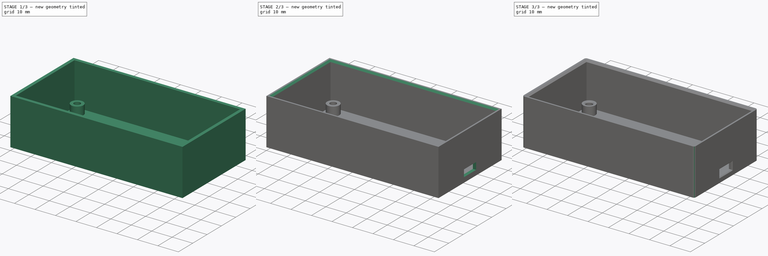
[diagram: build sequence overview — one tinted view per stage of 3, left to right]
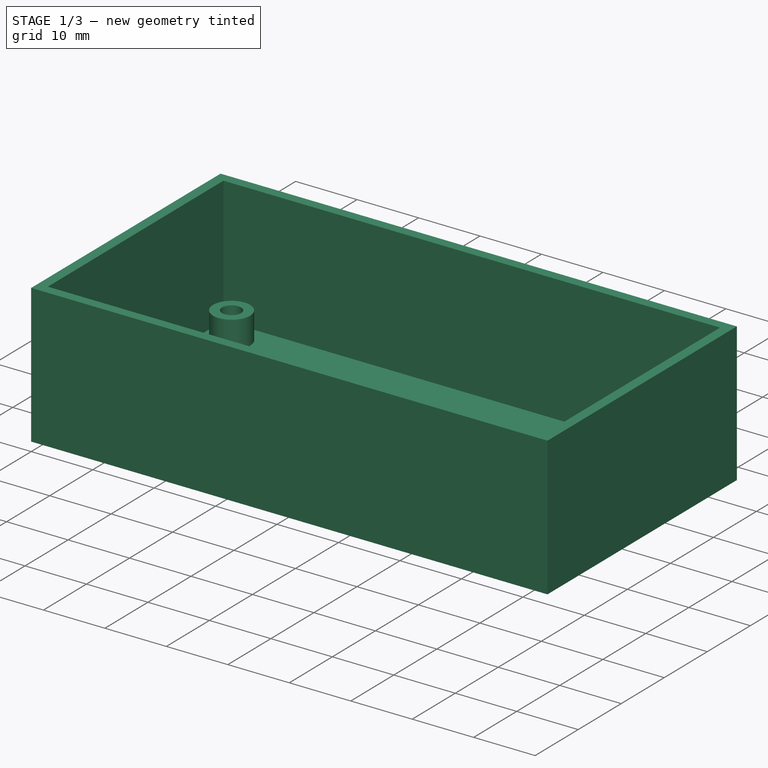
[diagram: stage 1 of 3 — iso view after this stage's code; geometry added in this stage tinted green]
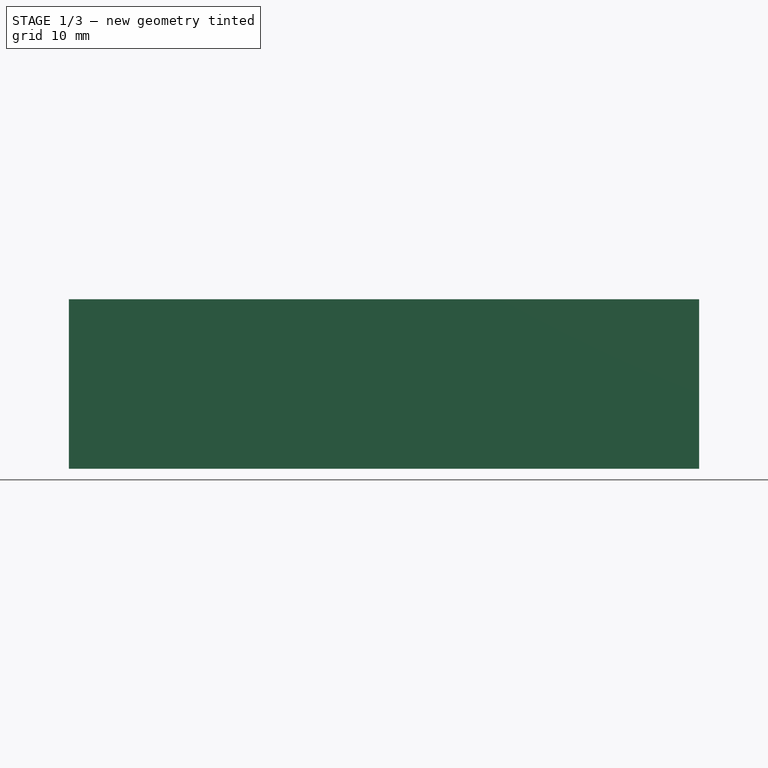
[diagram: stage 1 of 3 — front view after this stage's code; geometry added in this stage tinted green]
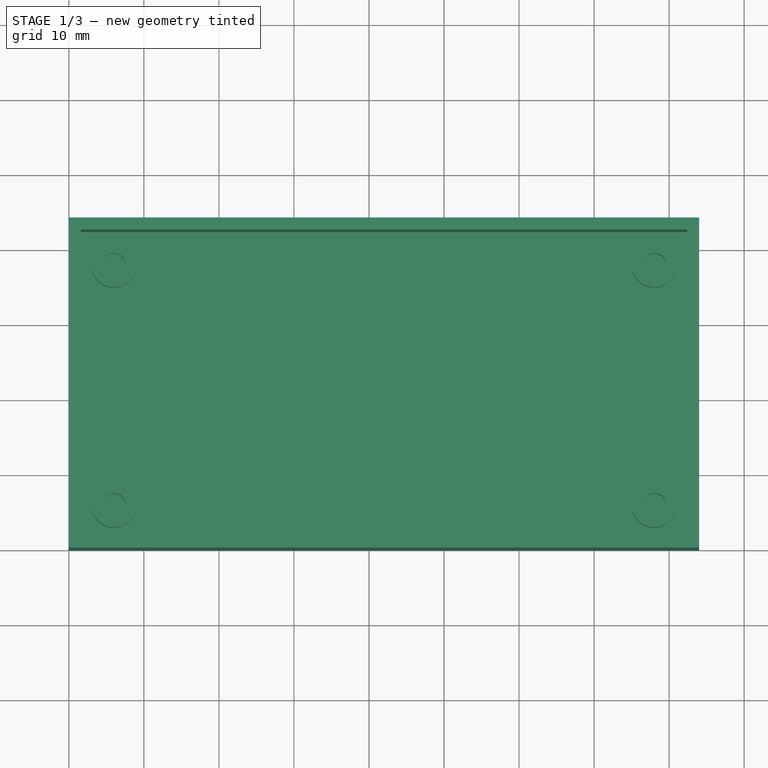
[diagram: stage 1 of 3 — top view after this stage's code; geometry added in this stage tinted green]
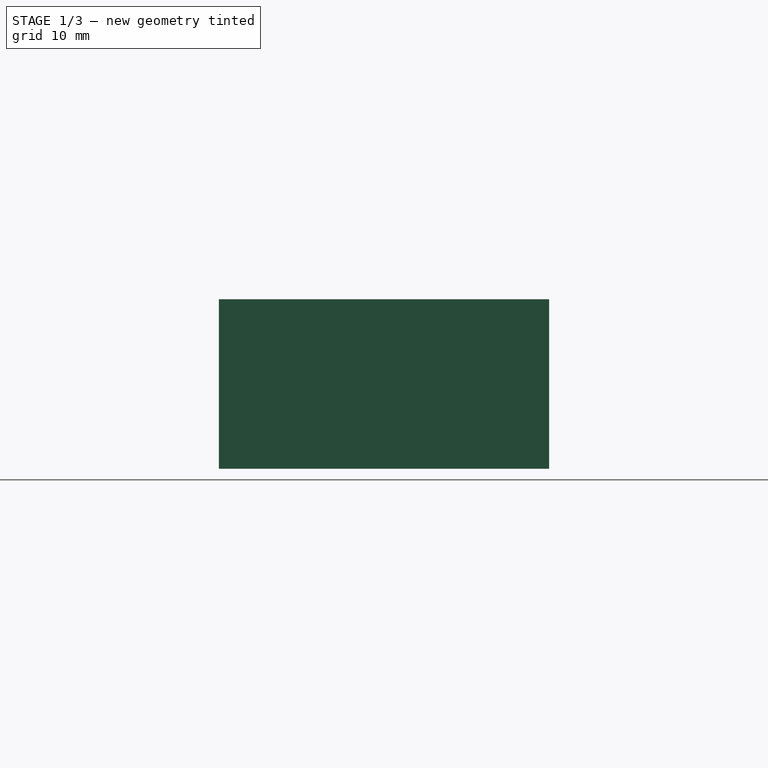
[diagram: stage 1 of 3 — right view after this stage's code; geometry added in this stage tinted green]
FCSTD DOCUMENT  (FreeCAD 1.0R39109 (Git))
Label: Bottom
License: All rights reserved
LicenseURL: https://en.wikipedia.org/wiki/All_rights_reserved
objects: Sketcher::SketchObject×5, PartDesign::Pad×3, PartDesign::Chamfer×3, PartDesign::Pocket×1, PartDesign::Fillet×1, PartDesign::Body×1
note: 35 computed .brp shape members not serialized (recipe doc carries the construction recipe); baked Part::Feature solids carry a one-line shape summary decoded from their .brp

FEATURE [Sketcher::SketchObject] Sketch
  ArcFitTolerance = 1e-06
  AttachmentSupport = -> [XY_Plane]
  FullyConstrained = true
  MakeInternals = false
  MapMode = 5
  sketch-geometry (19):
    g0: LineSegment StartX=2 StartY=2 StartZ=0 EndX=82 EndY=2 EndZ=0
    g1: LineSegment StartX=82 StartY=2 StartZ=0 EndX=82 EndY=42 EndZ=0
    g2: LineSegment StartX=82 StartY=42 StartZ=0 EndX=2 EndY=42 EndZ=0
    g3: LineSegment StartX=2 StartY=42 StartZ=0 EndX=2 EndY=2 EndZ=0
    g4: LineSegment StartX=6 StartY=38 StartZ=0 EndX=6 EndY=6 EndZ=0
    g5: LineSegment StartX=6 StartY=6 StartZ=0 EndX=78 EndY=6 EndZ=0
    g6: LineSegment StartX=78 StartY=6 StartZ=0 EndX=78 EndY=38 EndZ=0
    g7: LineSegment StartX=78 StartY=38 StartZ=0 EndX=6 EndY=38 EndZ=0
    g8: LineSegment [constr] StartX=2 StartY=42 StartZ=0 EndX=6 EndY=38 EndZ=0
    g9: LineSegment [constr] StartX=78 StartY=38 StartZ=0 EndX=82 EndY=42 EndZ=0
    g10: LineSegment [constr] StartX=78 StartY=6 StartZ=0 EndX=82 EndY=2 EndZ=0
    g11: LineSegment StartX=0 StartY=0 StartZ=0 EndX=84 EndY=0 EndZ=0
    g12: LineSegment StartX=84 StartY=0 StartZ=0 EndX=84 EndY=44 EndZ=0
    g13: LineSegment StartX=84 StartY=44 StartZ=0 EndX=0 EndY=44 EndZ=0
    g14: LineSegment StartX=0 StartY=44 StartZ=0 EndX=0 EndY=0 EndZ=0
    g15: LineSegment [constr] StartX=2 StartY=42 StartZ=0 EndX=0 EndY=44 EndZ=0
    g16: LineSegment [constr] StartX=82 StartY=42 StartZ=0 EndX=84 EndY=44 EndZ=0
    g17: LineSegment [constr] StartX=82 StartY=2 StartZ=0 EndX=84 EndY=0 EndZ=0
    g18: LineSegment [constr] StartX=2 StartY=2 StartZ=0 EndX=0 EndY=0 EndZ=0
  constraints (49):
    c: Coincident(g0,g1)
    c: Coincident(g1,g2)
    c: Coincident(g2,g3)
    c: Coincident(g3,g0)
    c: Horizontal(g0)
    c: Horizontal(g2)
    c: Vertical(g1)
    c: Vertical(g3)
    c: DistanceX(g2,g2) = 80
    c: DistanceY(g3,g3) = 40
    c: Coincident(g4,g5)
    c: Coincident(g5,g6)
    c: Coincident(g6,g7)
    c: Coincident(g7,g4)
    c: Vertical(g4)
    c: Vertical(g6)
    c: Horizontal(g5)
    c: Horizontal(g7)
    c: DistanceX(g7,g7) = 72
    c: DistanceY(g4,g4) = 32
    c: Coincident(g8,g2)
    c: Coincident(g8,g4)
    c: Coincident(g9,g6)
    c: Coincident(g9,g1)
    c: Coincident(g10,g5)
    c: Coincident(g10,g0)
    c: Equal(g10,g9)
    c: Equal(g9,g8)
    c: Coincident(g11,g12)
    c: Coincident(g12,g13)
    c: Coincident(g13,g14)
    c: Coincident(g14,g11)
    c: Horizontal(g11)
    c: Horizontal(g13)
    c: Vertical(g12)
    c: Vertical(g14)
    c: Coincident(g11,g-1)
    c: Coincident(g15,g2)
    c: Coincident(g15,g13)
    c: Coincident(g16,g1)
    c: Coincident(g16,g12)
    c: Coincident(g17,g0)
    c: Coincident(g17,g11)
    c: Coincident(g18,g0)
    c: Coincident(g18,g11)
    c: Equal(g18,g15)
    c: Equal(g15,g16)
    c: DistanceX(g18,g18) = 2
    c: DistanceY(g18,g18) = 2
FEATURE [Sketcher::SketchObject] Sketch001
  ArcFitTolerance = 1e-06
  AttachmentSupport = -> [XY_Plane]
  FullyConstrained = true
  MakeInternals = false
  MapMode = 5
  expr: Constraints[18] = Sketch.Constraints[18]
  expr: Constraints[19] = Sketch.Constraints[19]
  expr: Constraints[47] = Sketch.Constraints[47]
  expr: Constraints[48] = Sketch.Constraints[48]
  expr: Constraints[8] = Sketch.Constraints[8]
  expr: Constraints[9] = Sketch.Constraints[9]
  sketch-geometry (23):
    g0: LineSegment [constr] StartX=2 StartY=2 StartZ=0 EndX=82 EndY=2 EndZ=0
    g1: LineSegment [constr] StartX=82 StartY=2 StartZ=0 EndX=82 EndY=42 EndZ=0
    g2: LineSegment [constr] StartX=82 StartY=42 StartZ=0 EndX=2 EndY=42 EndZ=0
    g3: LineSegment [constr] StartX=2 StartY=42 StartZ=0 EndX=2 EndY=2 EndZ=0
    g4: LineSegment [constr] StartX=6 StartY=38 StartZ=0 EndX=6 EndY=6 EndZ=0
    g5: LineSegment [constr] StartX=6 StartY=6 StartZ=0 EndX=78 EndY=6 EndZ=0
    g6: LineSegment [constr] StartX=78 StartY=6 StartZ=0 EndX=78 EndY=38 EndZ=0
    g7: LineSegment [constr] StartX=78 StartY=38 StartZ=0 EndX=6 EndY=38 EndZ=0
    g8: LineSegment [constr] StartX=2 StartY=42 StartZ=0 EndX=6 EndY=38 EndZ=0
    g9: LineSegment [constr] StartX=78 StartY=38 StartZ=0 EndX=82 EndY=42 EndZ=0
    g10: LineSegment [constr] StartX=78 StartY=6 StartZ=0 EndX=82 EndY=2 EndZ=0
    g11: LineSegment StartX=0 StartY=0 StartZ=0 EndX=84 EndY=0 EndZ=0
    g12: LineSegment StartX=84 StartY=0 StartZ=0 EndX=84 EndY=44 EndZ=0
    g13: LineSegment StartX=84 StartY=44 StartZ=0 EndX=0 EndY=44 EndZ=0
    g14: LineSegment StartX=0 StartY=44 StartZ=0 EndX=0 EndY=0 EndZ=0
    g15: LineSegment [constr] StartX=2 StartY=42 StartZ=0 EndX=0 EndY=44 EndZ=0
    g16: LineSegment [constr] StartX=82 StartY=42 StartZ=0 EndX=84 EndY=44 EndZ=0
    g17: LineSegment [constr] StartX=82 StartY=2 StartZ=0 EndX=84 EndY=0 EndZ=0
    g18: LineSegment [constr] StartX=2 StartY=2 StartZ=0 EndX=0 EndY=0 EndZ=0
    g19: LineSegment StartX=1.6 StartY=42.4 StartZ=0 EndX=1.6 EndY=1.6 EndZ=0
    g20: LineSegment StartX=1.6 StartY=1.6 StartZ=0 EndX=82.4 EndY=1.6 EndZ=0
    g21: LineSegment StartX=82.4 StartY=1.6 StartZ=0 EndX=82.4 EndY=42.4 EndZ=0
    g22: LineSegment StartX=82.4 StartY=42.4 StartZ=0 EndX=1.6 EndY=42.4 EndZ=0
  constraints (61):
    c: Coincident(g0,g1)
    c: Coincident(g1,g2)
    c: Coincident(g2,g3)
    c: Coincident(g3,g0)
    c: Horizontal(g0)
    c: Horizontal(g2)
    c: Vertical(g1)
    c: Vertical(g3)
    c: DistanceX(g2,g2) = 80
    c: DistanceY(g3,g3) = 40
    c: Coincident(g4,g5)
    c: Coincident(g5,g6)
    c: Coincident(g6,g7)
    c: Coincident(g7,g4)
    c: Vertical(g4)
    c: Vertical(g6)
    c: Horizontal(g5)
    c: Horizontal(g7)
    c: DistanceX(g7,g7) = 72
    c: DistanceY(g4,g4) = 32
    c: Coincident(g8,g2)
    c: Coincident(g8,g4)
    c: Coincident(g9,g6)
    c: Coincident(g9,g1)
    c: Coincident(g10,g5)
    c: Coincident(g10,g0)
    c: Equal(g10,g9)
    c: Equal(g9,g8)
    c: Coincident(g11,g12)
    c: Coincident(g12,g13)
    c: Coincident(g13,g14)
    c: Coincident(g14,g11)
    c: Horizontal(g11)
    c: Horizontal(g13)
    c: Vertical(g12)
    c: Vertical(g14)
    c: Coincident(g11,g-1)
    c: Coincident(g15,g2)
    c: Coincident(g15,g13)
    c: Coincident(g16,g1)
    c: Coincident(g16,g12)
    c: Coincident(g17,g0)
    c: Coincident(g17,g11)
    c: Coincident(g18,g0)
    c: Coincident(g18,g11)
    c: Equal(g18,g15)
    c: Equal(g15,g16)
    c: DistanceX(g18,g18) = 2
    c: DistanceY(g18,g18) = 2
    c: Coincident(g19,g20)
    c: Coincident(g20,g21)
    c: Coincident(g21,g22)
    c: Coincident(g22,g19)
    c: Vertical(g19)
    c: Vertical(g21)
    c: Horizontal(g20)
    c: Horizontal(g22)
    c: PointOnObject(g19,g15)
    c: PointOnObject(g20,g17)
    c: PointOnObject(g21,g16)
    c: DistanceX(g13,g19) = 1.6
FEATURE [PartDesign::Pad] Pad
  Direction = (0,0,1)
  Length = 20.6
  Length2 = 10
  Profile = -> Sketch001
  ReferenceAxis = -> Sketch001 [N_Axis]
  Refine = true
  Suppressed = false
  Type = 0
  expr: Length = 4.4 + 16.2
FEATURE [Sketcher::SketchObject] Sketch002
  ArcFitTolerance = 1e-06
  AttachmentSupport = -> [Pad]
  ExternalGeometry = -> [Pad]
  FullyConstrained = true
  MakeInternals = false
  MapMode = 5
  Placement = pos=(0,0,0) rot=(1,0,0;3.14159rad)
  sketch-geometry (4):
    g0: LineSegment StartX=0 StartY=0 StartZ=0 EndX=0 EndY=-44 EndZ=0
    g1: LineSegment StartX=0 StartY=-44 StartZ=0 EndX=84 EndY=-44 EndZ=0
    g2: LineSegment StartX=84 StartY=-44 StartZ=0 EndX=84 EndY=0 EndZ=0
    g3: LineSegment StartX=84 StartY=0 StartZ=0 EndX=0 EndY=0 EndZ=0
  constraints (10):
    c: Coincident(g0,g1)
    c: Coincident(g1,g2)
    c: Coincident(g2,g3)
    c: Coincident(g3,g0)
    c: Vertical(g0)
    c: Vertical(g2)
    c: Horizontal(g1)
    c: Horizontal(g3)
    c: Coincident(g0,g-1)
    c: Coincident(g1,g-3)
FEATURE [PartDesign::Pad] Pad001
  BaseFeature = -> Pad
  Direction = (0,0,-1)
  Length = 2
  Length2 = 10
  Profile = -> Sketch002
  ReferenceAxis = -> Sketch002 [N_Axis]
  Refine = true
  Suppressed = false
  Type = 0
FEATURE [Sketcher::SketchObject] Sketch003
  ArcFitTolerance = 1e-06
  AttachmentSupport = -> [Pad001]
  ExternalGeometry = -> [Sketch]
  FullyConstrained = true
  MakeInternals = false
  MapMode = 5
  sketch-geometry (8):
    g0: Circle CenterX=6 CenterY=38 CenterZ=0 NormalX=0 NormalY=0 NormalZ=1 AngleXU=0 Radius=1.55
    g1: Circle CenterX=6 CenterY=38 CenterZ=0 NormalX=0 NormalY=0 NormalZ=1 AngleXU=0 Radius=3
    g2: Circle CenterX=78 CenterY=38 CenterZ=0 NormalX=0 NormalY=0 NormalZ=1 AngleXU=0 Radius=1.55
    g3: Circle CenterX=78 CenterY=38 CenterZ=0 NormalX=0 NormalY=0 NormalZ=1 AngleXU=0 Radius=3
    g4: Circle CenterX=78 CenterY=6 CenterZ=0 NormalX=0 NormalY=0 NormalZ=1 AngleXU=0 Radius=1.55
    g5: Circle CenterX=78 CenterY=6 CenterZ=0 NormalX=0 NormalY=0 NormalZ=1 AngleXU=0 Radius=3
    g6: Circle CenterX=6 CenterY=6 CenterZ=0 NormalX=0 NormalY=0 NormalZ=1 AngleXU=0 Radius=1.55
    g7: Circle CenterX=6 CenterY=6 CenterZ=0 NormalX=0 NormalY=0 NormalZ=1 AngleXU=0 Radius=3
  constraints (16):
    c: Coincident(g0,g-3)
    c: Coincident(g1,g0)
    c: Coincident(g2,g-4)
    c: Coincident(g3,g2)
    c: Coincident(g4,g-5)
    c: Coincident(g5,g4)
    c: Coincident(g6,g-6)
    c: Coincident(g7,g6)
    c: Diameter(g6) = 3.1
    c: Diameter(g7) = 6
    c: Equal(g6,g0)
    c: Equal(g0,g2)
    c: Equal(g2,g4)
    c: Equal(g5,g3)
    c: Equal(g3,g1)
    c: Equal(g1,g7)
FEATURE [PartDesign::Pad] Pad002
  BaseFeature = -> Pad001
  Direction = (0,0,1)
  Length = 4.4
  Length2 = 10
  Profile = -> Sketch003
  ReferenceAxis = -> Sketch003 [N_Axis]
  Refine = true
  Suppressed = false
  Type = 0
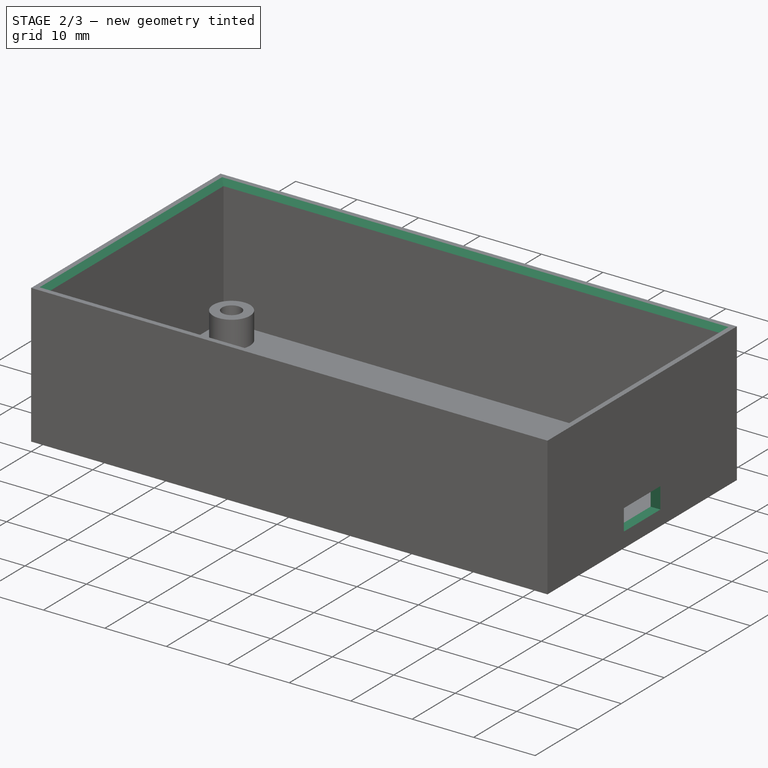
[diagram: stage 2 of 3 — iso view after this stage's code; geometry added in this stage tinted green]
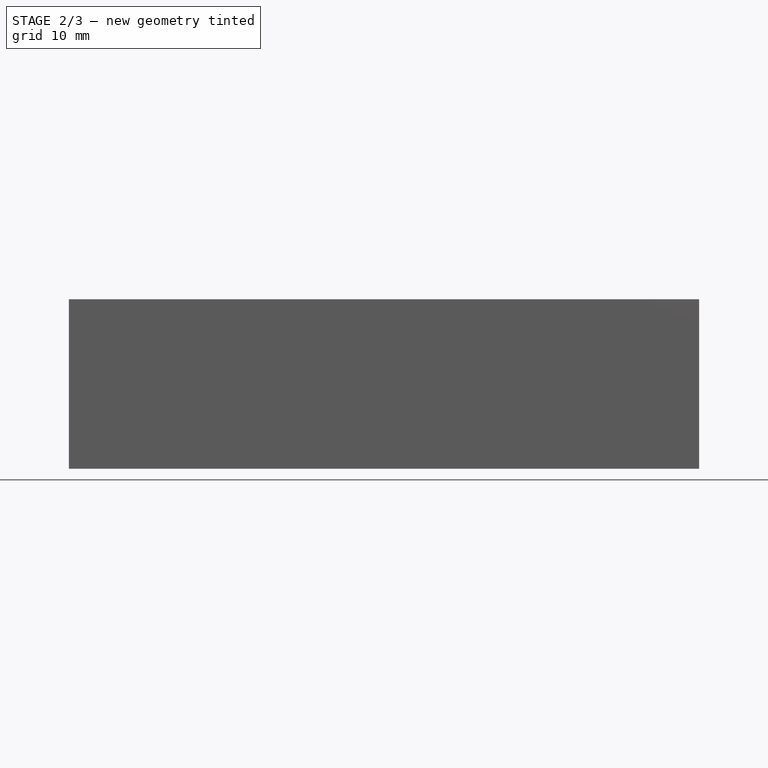
[diagram: stage 2 of 3 — front view after this stage's code; geometry added in this stage tinted green]
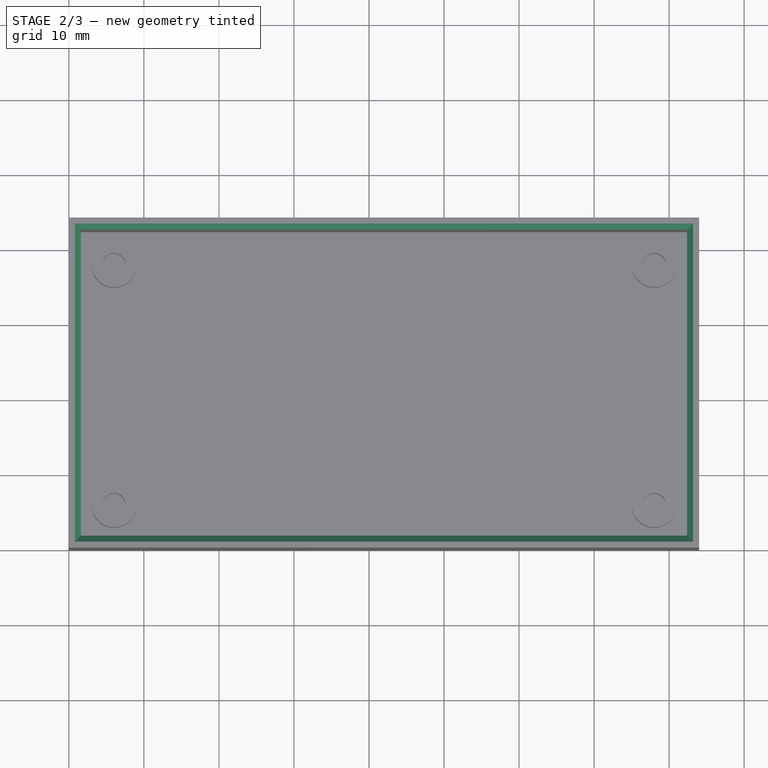
[diagram: stage 2 of 3 — top view after this stage's code; geometry added in this stage tinted green]
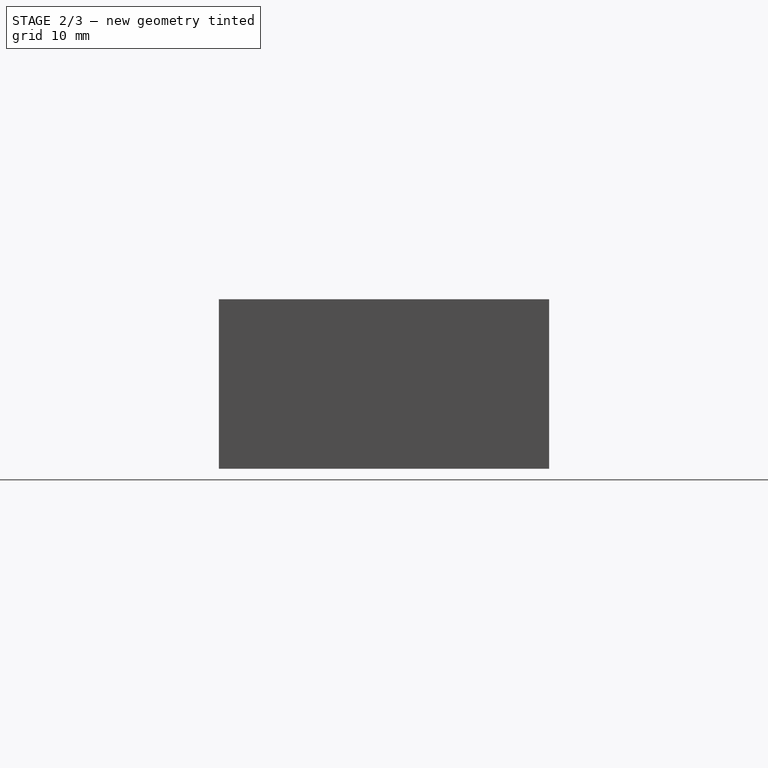
[diagram: stage 2 of 3 — right view after this stage's code; geometry added in this stage tinted green]
FEATURE [Sketcher::SketchObject] Sketch004
  ArcFitTolerance = 1e-06
  AttachmentSupport = -> [Pad002]
  ExternalGeometry = -> [Pad002,Sketch]
  FullyConstrained = true
  MakeInternals = false
  MapMode = 5
  Placement = pos=(84,0,0) rot=(0.57735,0.57735,0.57735;2.0944rad)
  sketch-geometry (16):
    g0: LineSegment [constr] StartX=18.25 StartY=0.95 StartZ=0 EndX=25.75 EndY=0.95 EndZ=0
    g1: LineSegment [constr] StartX=25.75 StartY=0.95 StartZ=0 EndX=25.75 EndY=3.4 EndZ=0
    g2: LineSegment [constr] StartX=25.75 StartY=3.4 StartZ=0 EndX=18.25 EndY=3.4 EndZ=0
    g3: LineSegment [constr] StartX=18.25 StartY=3.4 StartZ=0 EndX=18.25 EndY=0.95 EndZ=0
    g4: GeomPoint X=22 Y=0.95 Z=0
    g5: GeomPoint X=22 Y=0 Z=0
    g6: LineSegment [constr] StartX=22 StartY=0.95 StartZ=0 EndX=22 EndY=0 EndZ=0
    g7: LineSegment StartX=17.75 StartY=3.9 StartZ=0 EndX=17.75 EndY=0.45 EndZ=0
    g8: LineSegment StartX=17.75 StartY=0.45 StartZ=0 EndX=26.25 EndY=0.45 EndZ=0
    g9: LineSegment StartX=26.25 StartY=0.45 StartZ=0 EndX=26.25 EndY=3.9 EndZ=0
    g10: LineSegment StartX=26.25 StartY=3.9 StartZ=0 EndX=17.75 EndY=3.9 EndZ=0
    g11: LineSegment [constr] StartX=25.75 StartY=0.95 StartZ=0 EndX=26.25 EndY=0.45 EndZ=0
    g12: LineSegment [constr] StartX=25.75 StartY=3.4 StartZ=0 EndX=26.25 EndY=3.9 EndZ=0
    g13: LineSegment [constr] StartX=18.25 StartY=3.4 StartZ=0 EndX=17.75 EndY=3.9 EndZ=0
    g14: LineSegment [constr] StartX=18.25 StartY=0.95 StartZ=0 EndX=17.75 EndY=0.45 EndZ=0
    g15: LineSegment [constr] StartX=25.75 StartY=3.4 StartZ=0 EndX=35 EndY=4.4 EndZ=0
  constraints (38):
    c: Coincident(g0,g1)
    c: Coincident(g1,g2)
    c: Coincident(g2,g3)
    c: Coincident(g3,g0)
    c: Horizontal(g0)
    c: Horizontal(g2)
    c: Vertical(g1)
    c: Vertical(g3)
    c: Symmetric(g0,g0,g4)
    c: Symmetric(g-4,g-4,g5)
    c: Coincident(g6,g4)
    c: Coincident(g6,g5)
    c: Vertical(g6)
    c: DistanceY(g1,g1) = 2.45
    c: Coincident(g7,g8)
    c: Coincident(g8,g9)
    c: Coincident(g9,g10)
    c: Coincident(g10,g7)
    c: Vertical(g7)
    c: Vertical(g9)
    c: Horizontal(g8)
    c: Horizontal(g10)
    c: Coincident(g11,g0)
    c: Coincident(g11,g8)
    c: Coincident(g12,g1)
    c: Coincident(g12,g9)
    c: Coincident(g13,g2)
    c: Coincident(g13,g7)
    c: Coincident(g14,g0)
    c: Coincident(g14,g7)
    c: Equal(g14,g13)
    c: Equal(g13,g12)
    c: Angle(g13,g10) = 0.785398
    c: DistanceY(g13,g13) = 0.5
    c: DistanceX(g2,g2) = 7.5
    c: Coincident(g15,g1)
    c: Coincident(g15,g-3)
    c: DistanceY(g15,g15) = 1
FEATURE [PartDesign::Pocket] Pocket
  BaseFeature = -> Pad002
  Direction = (-1,0,0)
  Length = 5
  Length2 = 5
  Profile = -> Sketch004
  ReferenceAxis = -> Sketch004 [N_Axis]
  Refine = true
  Suppressed = false
  Type = 2
FEATURE [PartDesign::Chamfer] Chamfer
  Angle = 45
  Base = -> Pocket [Edge17,Edge20,Edge19,Edge18]
  BaseFeature = -> Pocket
  ChamferType = 0
  FlipDirection = false
  Refine = true
  Size = 0.8
  Size2 = 1
  SupportTransform = false
  Suppressed = false
  UseAllEdges = false
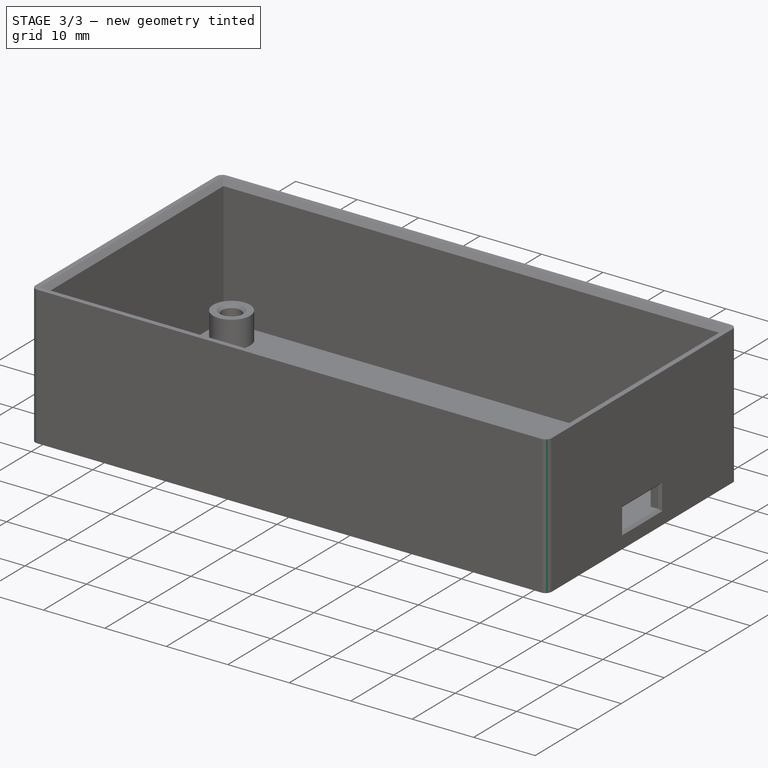
[diagram: stage 3 of 3 — iso view after this stage's code; geometry added in this stage tinted green]
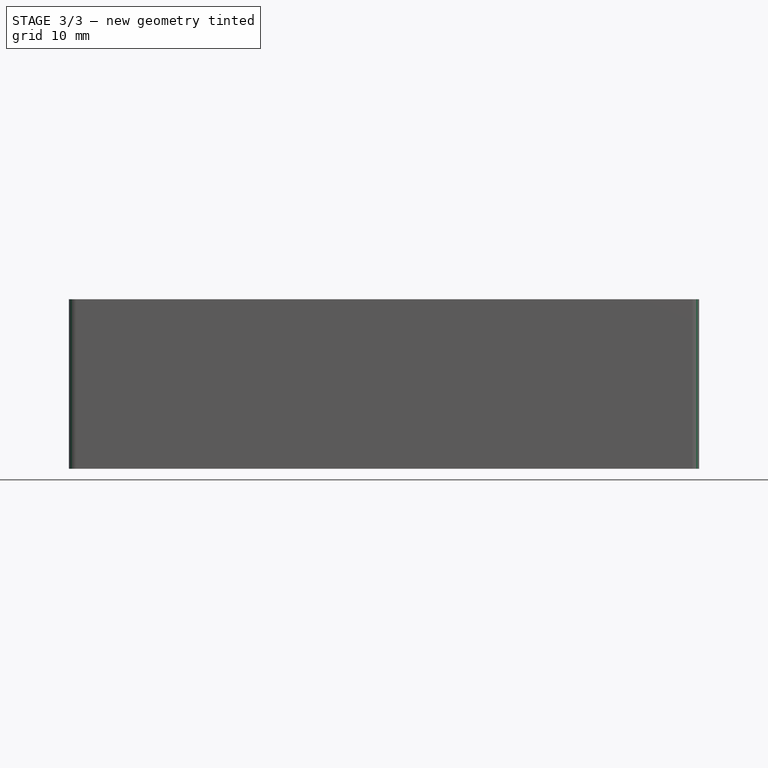
[diagram: stage 3 of 3 — front view after this stage's code; geometry added in this stage tinted green]
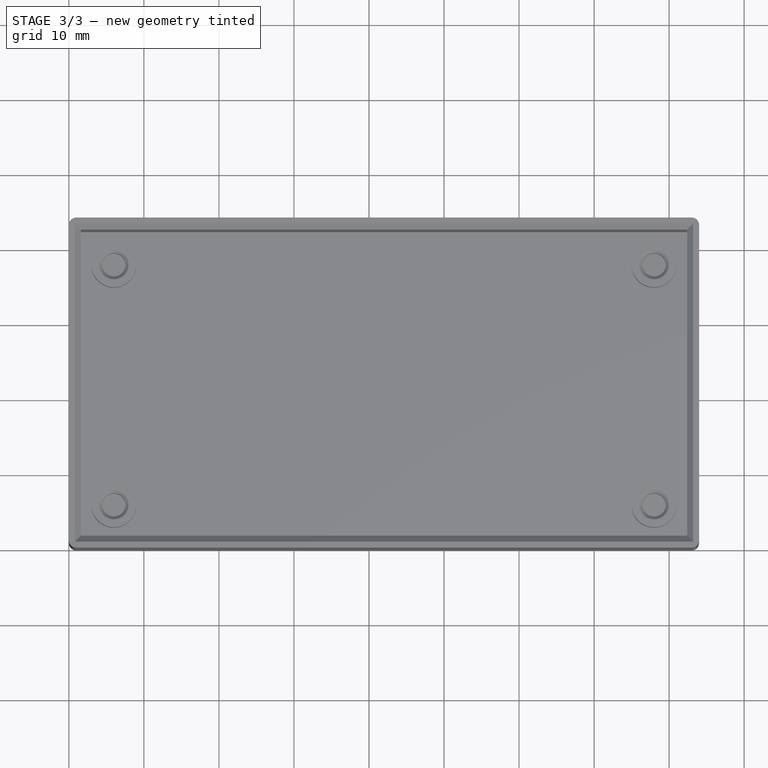
[diagram: stage 3 of 3 — top view after this stage's code; geometry added in this stage tinted green]
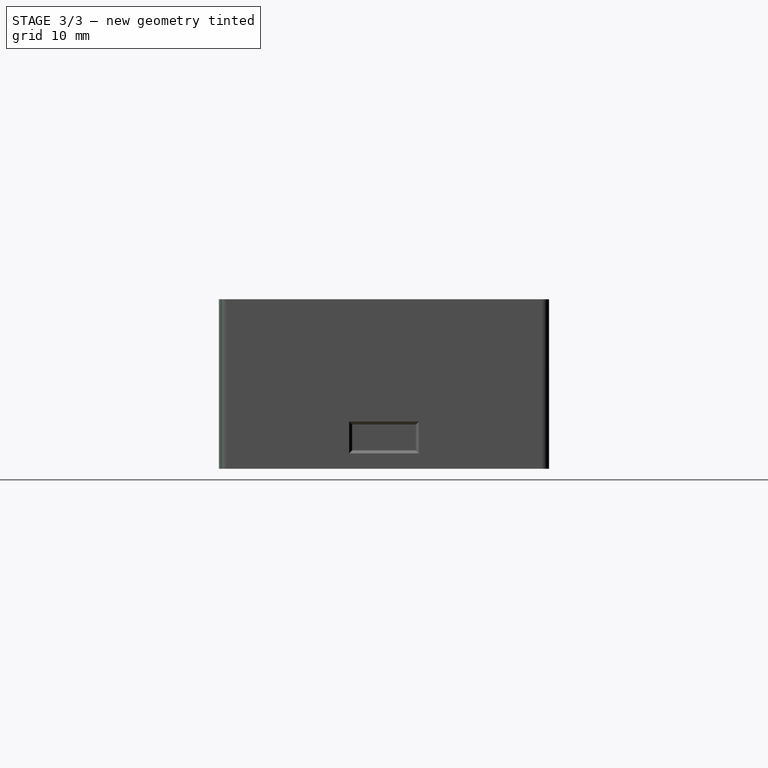
[diagram: stage 3 of 3 — right view after this stage's code; geometry added in this stage tinted green]
FEATURE [PartDesign::Chamfer] Chamfer001
  Angle = 45
  Base = -> Chamfer [Edge59,Edge60,Edge58,Edge57]
  BaseFeature = -> Chamfer
  ChamferType = 0
  FlipDirection = false
  Refine = true
  Size = 0.4
  Size2 = 1
  SupportTransform = false
  Suppressed = false
  UseAllEdges = false
FEATURE [PartDesign::Fillet] Fillet
  Base = -> Chamfer001 [Edge66,Edge57,Edge59,Edge69]
  BaseFeature = -> Chamfer001
  Radius = 1
  Refine = true
  SupportTransform = false
  Suppressed = false
  UseAllEdges = false
FEATURE [PartDesign::Chamfer] Chamfer002
  Angle = 45
  Base = -> Fillet [Edge27,Edge26,Edge25,Edge24]
  BaseFeature = -> Fillet
  ChamferType = 0
  FlipDirection = false
  Refine = true
  Size = 0.4
  Size2 = 1
  SupportTransform = false
  Suppressed = false
  UseAllEdges = false
FEATURE [PartDesign::Body] Body
  AllowCompound = false
  Group = -> [Sketch,Sketch001,Pad,Sketch002,Pad001,Sketch003,Pad002,Sketch004,Pocket,Chamfer,Chamfer001,Fillet,Chamfer002]
  Origin = -> Origin
  Tip = -> Chamfer002
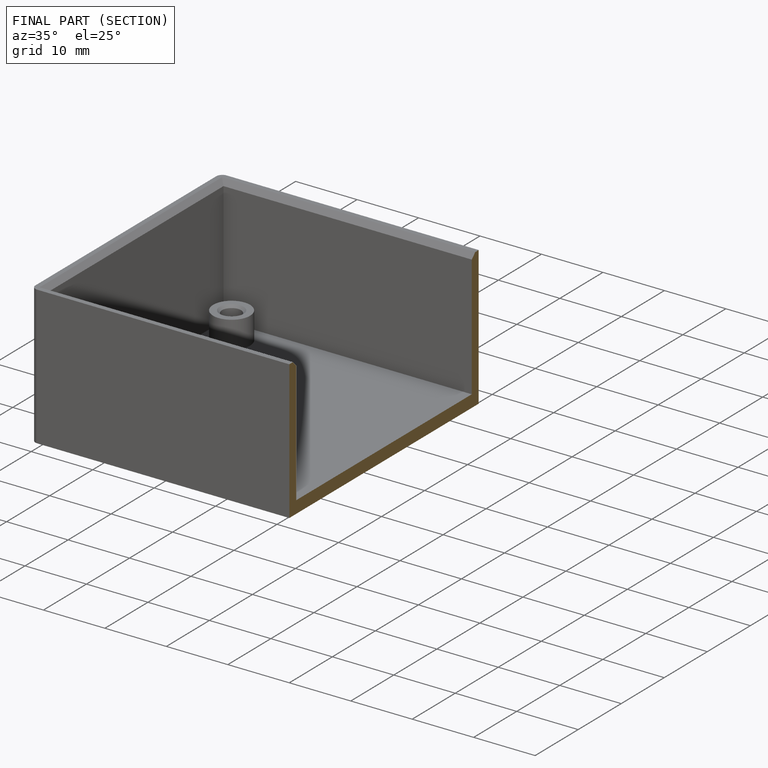
[diagram: finished part — half-section view (interior)]
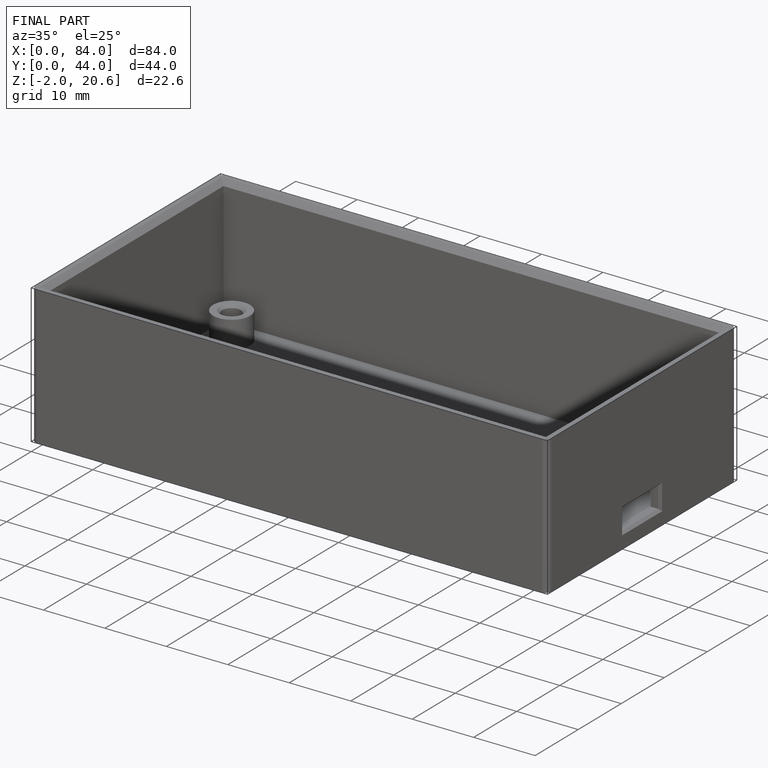
[diagram: finished part — iso view with bounding-box wireframe]
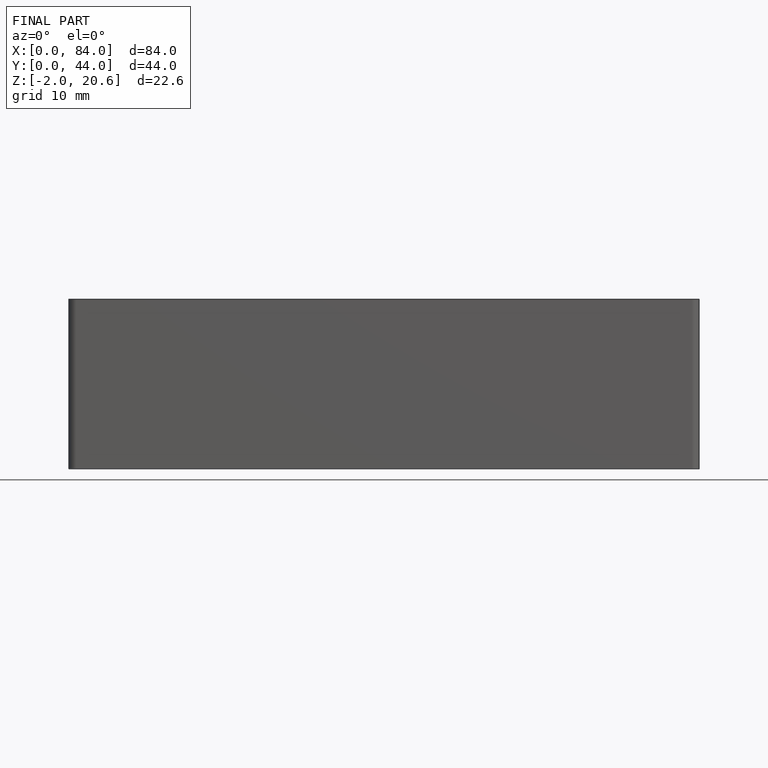
[diagram: finished part — front view with bounding-box wireframe]
